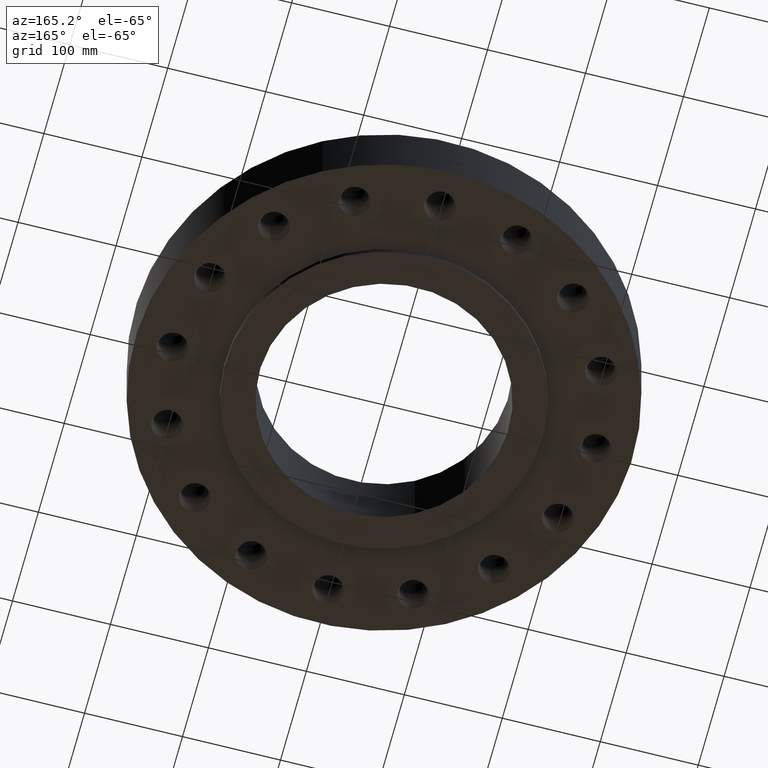
[diagram: clean part render]
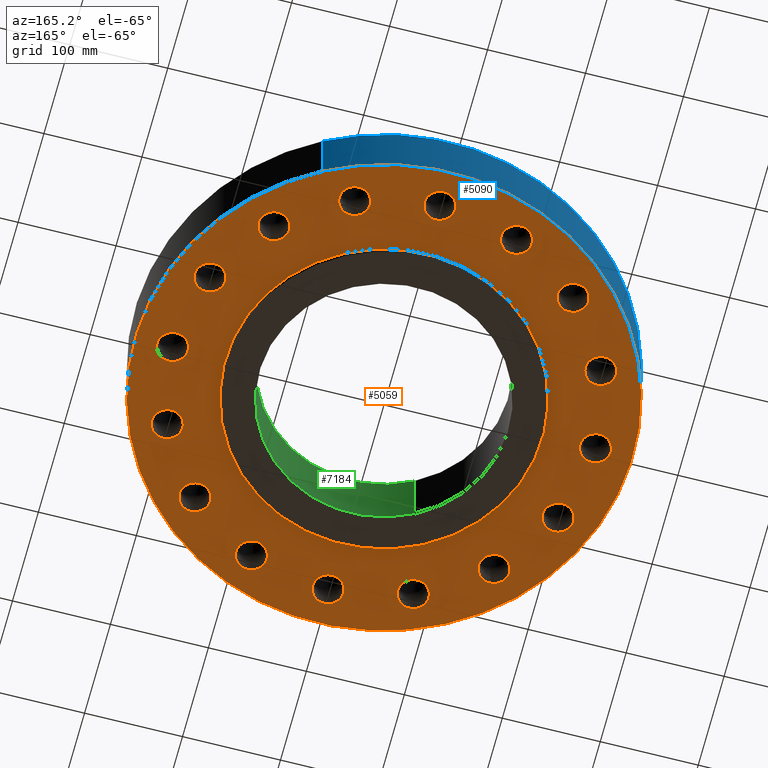
[diagram: same view with three faces highlighted in distinct colors, each labeled with its STEP entity id]
A machine part, auxiliary view with three faces highlighted in distinct colors.
Their STEP definitions:

[orange] entity #5059 — the highlighted planar face has unit normal (0, 0, -1).
#4242=AXIS2_PLACEMENT_3D('Circle Axis2P3D',#4240,#4241,$) ;
#4262=AXIS2_PLACEMENT_3D('Circle Axis2P3D',#4260,#4261,$) ;
#4282=AXIS2_PLACEMENT_3D('Circle Axis2P3D',#4280,#4281,$) ;
#4294=AXIS2_PLACEMENT_3D('Plane Axis2P3D',#4291,#4292,#4293) ;
#4298=AXIS2_PLACEMENT_3D('Circle Axis2P3D',#4296,#4297,$) ;
#4307=AXIS2_PLACEMENT_3D('Circle Axis2P3D',#4305,#4306,$) ;
#4323=AXIS2_PLACEMENT_3D('Circle Axis2P3D',#4321,#4322,$) ;
#4332=AXIS2_PLACEMENT_3D('Circle Axis2P3D',#4330,#4331,$) ;
#4341=AXIS2_PLACEMENT_3D('Circle Axis2P3D',#4339,#4340,$) ;
#4350=AXIS2_PLACEMENT_3D('Circle Axis2P3D',#4348,#4349,$) ;
#4357=AXIS2_PLACEMENT_3D('Circle Axis2P3D',#4355,#4356,$) ;
#4389=AXIS2_PLACEMENT_3D('Circle Axis2P3D',#4387,#4388,$) ;
#4398=AXIS2_PLACEMENT_3D('Circle Axis2P3D',#4396,#4397,$) ;
#4405=AXIS2_PLACEMENT_3D('Circle Axis2P3D',#4403,#4404,$) ;
#4437=AXIS2_PLACEMENT_3D('Circle Axis2P3D',#4435,#4436,$) ;
#4446=AXIS2_PLACEMENT_3D('Circle Axis2P3D',#4444,#4445,$) ;
#4453=AXIS2_PLACEMENT_3D('Circle Axis2P3D',#4451,#4452,$) ;
#4485=AXIS2_PLACEMENT_3D('Circle Axis2P3D',#4483,#4484,$) ;
#4494=AXIS2_PLACEMENT_3D('Circle Axis2P3D',#4492,#4493,$) ;
#4501=AXIS2_PLACEMENT_3D('Circle Axis2P3D',#4499,#4500,$) ;
#4533=AXIS2_PLACEMENT_3D('Circle Axis2P3D',#4531,#4532,$) ;
#4542=AXIS2_PLACEMENT_3D('Circle Axis2P3D',#4540,#4541,$) ;
#4549=AXIS2_PLACEMENT_3D('Circle Axis2P3D',#4547,#4548,$) ;
#4581=AXIS2_PLACEMENT_3D('Circle Axis2P3D',#4579,#4580,$) ;
#4590=AXIS2_PLACEMENT_3D('Circle Axis2P3D',#4588,#4589,$) ;
#4597=AXIS2_PLACEMENT_3D('Circle Axis2P3D',#4595,#4596,$) ;
#4629=AXIS2_PLACEMENT_3D('Circle Axis2P3D',#4627,#4628,$) ;
#4638=AXIS2_PLACEMENT_3D('Circle Axis2P3D',#4636,#4637,$) ;
#4645=AXIS2_PLACEMENT_3D('Circle Axis2P3D',#4643,#4644,$) ;
#4677=AXIS2_PLACEMENT_3D('Circle Axis2P3D',#4675,#4676,$) ;
#4686=AXIS2_PLACEMENT_3D('Circle Axis2P3D',#4684,#4685,$) ;
#4693=AXIS2_PLACEMENT_3D('Circle Axis2P3D',#4691,#4692,$) ;
#4725=AXIS2_PLACEMENT_3D('Circle Axis2P3D',#4723,#4724,$) ;
#4734=AXIS2_PLACEMENT_3D('Circle Axis2P3D',#4732,#4733,$) ;
#4741=AXIS2_PLACEMENT_3D('Circle Axis2P3D',#4739,#4740,$) ;
#4773=AXIS2_PLACEMENT_3D('Circle Axis2P3D',#4771,#4772,$) ;
#4782=AXIS2_PLACEMENT_3D('Circle Axis2P3D',#4780,#4781,$) ;
#4789=AXIS2_PLACEMENT_3D('Circle Axis2P3D',#4787,#4788,$) ;
#4821=AXIS2_PLACEMENT_3D('Circle Axis2P3D',#4819,#4820,$) ;
#4830=AXIS2_PLACEMENT_3D('Circle Axis2P3D',#4828,#4829,$) ;
#4837=AXIS2_PLACEMENT_3D('Circle Axis2P3D',#4835,#4836,$) ;
#4869=AXIS2_PLACEMENT_3D('Circle Axis2P3D',#4867,#4868,$) ;
#4878=AXIS2_PLACEMENT_3D('Circle Axis2P3D',#4876,#4877,$) ;
#4885=AXIS2_PLACEMENT_3D('Circle Axis2P3D',#4883,#4884,$) ;
#4917=AXIS2_PLACEMENT_3D('Circle Axis2P3D',#4915,#4916,$) ;
#4926=AXIS2_PLACEMENT_3D('Circle Axis2P3D',#4924,#4925,$) ;
#4933=AXIS2_PLACEMENT_3D('Circle Axis2P3D',#4931,#4932,$) ;
#4965=AXIS2_PLACEMENT_3D('Circle Axis2P3D',#4963,#4964,$) ;
#4974=AXIS2_PLACEMENT_3D('Circle Axis2P3D',#4972,#4973,$) ;
#4981=AXIS2_PLACEMENT_3D('Circle Axis2P3D',#4979,#4980,$) ;
#5013=AXIS2_PLACEMENT_3D('Circle Axis2P3D',#5011,#5012,$) ;
#5022=AXIS2_PLACEMENT_3D('Circle Axis2P3D',#5020,#5021,$) ;
#5029=AXIS2_PLACEMENT_3D('Circle Axis2P3D',#5027,#5028,$) ;
#3959=CARTESIAN_POINT('Vertex',(6.01040764011,5.38540764011,2.84112191341E-017)) ;
#4178=CARTESIAN_POINT('Vertex',(6.08716319248,5.3926578241,0.)) ;
#4182=CARTESIAN_POINT('Control Point',(6.01040764011,5.38540764011,3.49676543189E-017)) ;
#4183=CARTESIAN_POINT('Control Point',(6.03613583724,5.38624061012,3.54605596225E-017)) ;
#4184=CARTESIAN_POINT('Control Point',(6.06178776131,5.38866509269,-5.55355421226E-012)) ;
#4185=CARTESIAN_POINT('Control Point',(6.08716315644,5.39265773436,-5.51380682145E-012)) ;
#4215=CARTESIAN_POINT('Control Point',(6.01040764011,5.38540764011,6.55643518479E-018)) ;
#4216=CARTESIAN_POINT('Control Point',(5.98469574429,5.38624008238,6.80273167895E-018)) ;
#4217=CARTESIAN_POINT('Control Point',(5.9590597717,5.38866207663,-3.87167894847E-011)) ;
#4218=CARTESIAN_POINT('Control Point',(5.93369613002,5.39265218477,-1.17694052229E-010)) ;
#4219=CARTESIAN_POINT('Vertex',(5.93369613738,5.39265235251,0.)) ;
#4240=CARTESIAN_POINT('Axis2P3D Location',(6.01040764011,6.01040764011,-8.74191357973E-018)) ;
#4244=CARTESIAN_POINT('Vertex',(5.46411249533,5.71196524233,-8.74191357973E-018)) ;
#4260=CARTESIAN_POINT('Axis2P3D Location',(6.01040764011,6.01040764011,-8.74191357973E-018)) ;
#4264=CARTESIAN_POINT('Vertex',(6.55670278489,6.30885003789,-8.74191357973E-018)) ;
#4280=CARTESIAN_POINT('Axis2P3D Location',(6.01040764011,6.01040764011,-8.74191357973E-018)) ;
#4291=CARTESIAN_POINT('Axis2P3D Location',(0.,10.,0.)) ;
#4296=CARTESIAN_POINT('Axis2P3D Location',(0.,0.,0.)) ;
#4300=CARTESIAN_POINT('Vertex',(-4.79425538606,-8.77582561894,-4.25206676518E-014)) ;
#4302=CARTESIAN_POINT('Vertex',(4.79425538606,8.77582561894,-4.25206676518E-014)) ;
#4305=CARTESIAN_POINT('Axis2P3D Location',(0.,0.,0.)) ;
#4321=CARTESIAN_POINT('Axis2P3D Location',(0.,0.,0.)) ;
#4325=CARTESIAN_POINT('Vertex',(3.05633780861,5.59458883207,-3.04917945661E-014)) ;
#4327=CARTESIAN_POINT('Vertex',(-3.05633780861,-5.59458883207,-3.04917945661E-014)) ;
#4330=CARTESIAN_POINT('Axis2P3D Location',(0.,0.,0.)) ;
#4339=CARTESIAN_POINT('Axis2P3D Location',(7.85297602638,3.25280917512,0.)) ;
#4343=CARTESIAN_POINT('Vertex',(8.4718958905,3.31947589697,0.)) ;
#4345=CARTESIAN_POINT('Vertex',(7.68748629027,2.65270968566,0.)) ;
#4348=CARTESIAN_POINT('Axis2P3D Location',(7.85297602638,3.25280917512,0.)) ;
#4352=CARTESIAN_POINT('Vertex',(7.23405616226,3.18614245326,8.74191357973E-018)) ;
#4355=CARTESIAN_POINT('Axis2P3D Location',(7.85297602638,3.25280917512,0.)) ;
#4359=CARTESIAN_POINT('Vertex',(7.5456991253,2.71143392996,0.)) ;
#4363=CARTESIAN_POINT('Control Point',(7.61379888115,2.67538446729,0.)) ;
#4364=CARTESIAN_POINT('Control Point',(7.5997372017,2.68174962304,0.)) ;
#4365=CARTESIAN_POINT('Control Point',(7.58587876717,2.68854608521,0.)) ;
#4366=CARTESIAN_POINT('Control Point',(7.57224147785,2.69576548619,0.)) ;
#4367=CARTESIAN_POINT('Control Point',(7.55884269662,2.70339829503,0.)) ;
#4368=CARTESIAN_POINT('Control Point',(7.5456991253,2.71143392996,0.)) ;
#4369=CARTESIAN_POINT('Vertex',(7.61379888115,2.67538446729,2.84112191341E-017)) ;
#4373=CARTESIAN_POINT('Control Point',(7.61379888115,2.67538446729,0.)) ;
#4374=CARTESIAN_POINT('Control Point',(7.62825199228,2.66993875279,0.)) ;
#4375=CARTESIAN_POINT('Control Point',(7.64286657171,2.66494230281,0.)) ;
#4376=CARTESIAN_POINT('Control Point',(7.65762346279,2.66040184048,0.)) ;
#4377=CARTESIAN_POINT('Control Point',(7.672503232,2.65632287566,0.)) ;
#4378=CARTESIAN_POINT('Control Point',(7.68748629027,2.65270968566,0.)) ;
#4387=CARTESIAN_POINT('Axis2P3D Location',(8.50000000003,1.1189649382E-015,0.)) ;
#4391=CARTESIAN_POINT('Vertex',(9.0973196447,-0.175258358137,0.)) ;
#4393=CARTESIAN_POINT('Vertex',(8.11745928761,-0.49108945554,0.)) ;
#4396=CARTESIAN_POINT('Axis2P3D Location',(8.50000000003,3.35689481461E-015,0.)) ;
#4400=CARTESIAN_POINT('Vertex',(7.90268035537,0.175258358137,-5.24514814784E-017)) ;
#4403=CARTESIAN_POINT('Axis2P3D Location',(8.50000000003,1.1189649382E-015,0.)) ;
#4407=CARTESIAN_POINT('Vertex',(8.00893782329,-0.382575729204,0.)) ;
#4411=CARTESIAN_POINT('Control Point',(8.05805826179,-0.441941738243,0.)) ;
#4412=CARTESIAN_POINT('Control Point',(8.0475028036,-0.430679929367,0.)) ;
#4413=CARTESIAN_POINT('Control Point',(8.03730017305,-0.419097423777,0.)) ;
#4414=CARTESIAN_POINT('Control Point',(8.02746370572,-0.407208802289,0.)) ;
#4415=CARTESIAN_POINT('Control Point',(8.01800579546,-0.395029514828,0.)) ;
#4416=CARTESIAN_POINT('Control Point',(8.00893782329,-0.382575729204,0.)) ;
#4417=CARTESIAN_POINT('Vertex',(8.05805826179,-0.441941738243,2.84112191341E-017)) ;
#4421=CARTESIAN_POINT('Control Point',(8.05805826179,-0.441941738243,0.)) ;
#4422=CARTESIAN_POINT('Control Point',(8.06932721063,-0.452503888588,0.)) ;
#4423=CARTESIAN_POINT('Control Point',(8.08091726281,-0.462712763877,0.)) ;
#4424=CARTESIAN_POINT('Control Point',(8.09281329274,-0.472554821825,0.)) ;
#4425=CARTESIAN_POINT('Control Point',(8.10499945469,-0.48201753509,0.)) ;
#4426=CARTESIAN_POINT('Control Point',(8.11745928761,-0.49108945554,0.)) ;
#4435=CARTESIAN_POINT('Axis2P3D Location',(7.85297602638,-3.25280917512,0.)) ;
#4439=CARTESIAN_POINT('Vertex',(8.33775895041,-3.64331111694,0.)) ;
#4441=CARTESIAN_POINT('Vertex',(7.31162269337,-3.56012467887,0.)) ;
#4444=CARTESIAN_POINT('Axis2P3D Location',(7.85297602638,-3.25280917512,0.)) ;
#4448=CARTESIAN_POINT('Vertex',(7.36819310234,-2.86230723329,0.)) ;
#4451=CARTESIAN_POINT('Axis2P3D Location',(7.85297602638,-3.25280917512,0.)) ;
#4455=CARTESIAN_POINT('Vertex',(7.2528883389,-3.41834170164,0.)) ;
#4459=CARTESIAN_POINT('Control Point',(7.27555131856,-3.49198632035,0.)) ;
#4460=CARTESIAN_POINT('Control Point',(7.27010905445,-3.47754236665,0.)) ;
#4461=CARTESIAN_POINT('Control Point',(7.2651154859,-3.46293714912,0.)) ;
#4462=CARTESIAN_POINT('Control Point',(7.26057735353,-3.44818924197,0.)) ;
#4463=CARTESIAN_POINT('Control Point',(7.25650019536,-3.433317662,0.)) ;
#4464=CARTESIAN_POINT('Control Point',(7.2528883389,-3.41834170164,0.)) ;
#4465=CARTESIAN_POINT('Vertex',(7.27555131856,-3.49198632035,2.84112191341E-017)) ;
#4469=CARTESIAN_POINT('Control Point',(7.27555131856,-3.49198632035,0.)) ;
#4470=CARTESIAN_POINT('Control Point',(7.28192050979,-3.50605691489,0.)) ;
#4471=CARTESIAN_POINT('Control Point',(7.28872155435,-3.51992400677,0.)) ;
#4472=CARTESIAN_POINT('Control Point',(7.2959456604,-3.53356929623,0.)) ;
#4473=CARTESIAN_POINT('Control Point',(7.30358298241,-3.54697514562,0.)) ;
#4474=CARTESIAN_POINT('Control Point',(7.31162269337,-3.56012467887,0.)) ;
#4483=CARTESIAN_POINT('Axis2P3D Location',(6.01040764011,-6.01040764011,0.)) ;
#4487=CARTESIAN_POINT('Vertex',(6.30885003789,-6.55670278489,0.)) ;
#4489=CARTESIAN_POINT('Vertex',(5.3926578241,-6.08716319247,0.)) ;
#4492=CARTESIAN_POINT('Axis2P3D Location',(6.01040764011,-6.01040764011,0.)) ;
#4496=CARTESIAN_POINT('Vertex',(5.71196524233,-5.46411249533,-8.74191357973E-018)) ;
#4499=CARTESIAN_POINT('Axis2P3D Location',(6.01040764011,-6.01040764011,0.)) ;
#4503=CARTESIAN_POINT('Vertex',(5.39265235251,-5.93369613739,0.)) ;
#4507=CARTESIAN_POINT('Control Point',(5.38540764011,-6.01040764011,0.)) ;
#4508=CARTESIAN_POINT('Control Point',(5.38590710547,-5.99498050262,0.)) ;
#4509=CARTESIAN_POINT('Control Point',(5.38688282447,-5.97957608513,0.)) ;
#4510=CARTESIAN_POINT('Control Point',(5.38833391658,-5.9642141275,0.)) ;
#4511=CARTESIAN_POINT('Control Point',(5.39025822086,-5.94891431827,0.)) ;
#4512=CARTESIAN_POINT('Control Point',(5.39265235251,-5.93369613739,0.)) ;
#4513=CARTESIAN_POINT('Vertex',(5.38540764011,-6.01040764011,2.84112191341E-017)) ;
#4517=CARTESIAN_POINT('Control Point',(5.38540764011,-6.01040764011,0.)) ;
#4518=CARTESIAN_POINT('Control Point',(5.38590742212,-6.02584455839,0.)) ;
#4519=CARTESIAN_POINT('Control Point',(5.38688406166,-6.04125872783,0.)) ;
#4520=CARTESIAN_POINT('Control Point',(5.38833643918,-6.05662987718,0.)) ;
#4521=CARTESIAN_POINT('Control Point',(5.39026220821,-6.07193794365,0.)) ;
#4522=CARTESIAN_POINT('Control Point',(5.3926578241,-6.08716319247,0.)) ;
#4531=CARTESIAN_POINT('Axis2P3D Location',(3.25280917512,-7.85297602638,0.)) ;
#4535=CARTESIAN_POINT('Vertex',(3.31947589697,-8.4718958905,0.)) ;
#4537=CARTESIAN_POINT('Vertex',(2.65270968566,-7.68748629027,0.)) ;
#4540=CARTESIAN_POINT('Axis2P3D Location',(3.25280917512,-7.85297602638,0.)) ;
#4544=CARTESIAN_POINT('Vertex',(3.18614245326,-7.23405616226,8.74191357973E-018)) ;
#4547=CARTESIAN_POINT('Axis2P3D Location',(3.25280917512,-7.85297602638,0.)) ;
#4551=CARTESIAN_POINT('Vertex',(2.71143392997,-7.54569912529,0.)) ;
#4555=CARTESIAN_POINT('Control Point',(2.67538446729,-7.61379888115,0.)) ;
#4556=CARTESIAN_POINT('Control Point',(2.68174962304,-7.5997372017,0.)) ;
#4557=CARTESIAN_POINT('Control Point',(2.68854608522,-7.58587876716,0.)) ;
#4558=CARTESIAN_POINT('Control Point',(2.6957654862,-7.57224147784,0.)) ;
#4559=CARTESIAN_POINT('Control Point',(2.70339829504,-7.5588426966,0.)) ;
#4560=CARTESIAN_POINT('Control Point',(2.71143392997,-7.54569912529,0.)) ;
#4561=CARTESIAN_POINT('Vertex',(2.67538446729,-7.61379888115,2.84112191341E-017)) ;
#4565=CARTESIAN_POINT('Control Point',(2.67538446729,-7.61379888115,0.)) ;
#4566=CARTESIAN_POINT('Control Point',(2.66993875279,-7.62825199228,0.)) ;
#4567=CARTESIAN_POINT('Control Point',(2.66494230281,-7.64286657171,0.)) ;
#4568=CARTESIAN_POINT('Control Point',(2.66040184048,-7.65762346279,0.)) ;
#4569=CARTESIAN_POINT('Control Point',(2.65632287566,-7.672503232,0.)) ;
#4570=CARTESIAN_POINT('Control Point',(2.65270968566,-7.68748629027,0.)) ;
#4579=CARTESIAN_POINT('Axis2P3D Location',(2.93728296279E-015,-8.50000000003,0.)) ;
#4583=CARTESIAN_POINT('Vertex',(-0.175258358137,-9.0973196447,0.)) ;
#4585=CARTESIAN_POINT('Vertex',(-0.491089455542,-8.11745928761,0.)) ;
#4588=CARTESIAN_POINT('Axis2P3D Location',(7.69288395016E-016,-8.50000000003,0.)) ;
#4592=CARTESIAN_POINT('Vertex',(0.175258358137,-7.90268035537,-5.24514814784E-017)) ;
#4595=CARTESIAN_POINT('Axis2P3D Location',(2.93728296279E-015,-8.50000000003,0.)) ;
#4599=CARTESIAN_POINT('Vertex',(-0.382575729198,-8.00893782329,0.)) ;
#4603=CARTESIAN_POINT('Control Point',(-0.441941738243,-8.05805826179,0.)) ;
#4604=CARTESIAN_POINT('Control Point',(-0.430679929366,-8.0475028036,0.)) ;
#4605=CARTESIAN_POINT('Control Point',(-0.419097423775,-8.03730017305,0.)) ;
#4606=CARTESIAN_POINT('Control Point',(-0.407208802285,-8.02746370571,0.)) ;
#4607=CARTESIAN_POINT('Control Point',(-0.395029514823,-8.01800579545,0.)) ;
#4608=CARTESIAN_POINT('Control Point',(-0.382575729198,-8.00893782329,0.)) ;
#4609=CARTESIAN_POINT('Vertex',(-0.441941738243,-8.05805826179,2.84112191341E-017)) ;
#4613=CARTESIAN_POINT('Control Point',(-0.441941738243,-8.05805826179,0.)) ;
#4614=CARTESIAN_POINT('Control Point',(-0.452503888588,-8.06932721063,0.)) ;
#4615=CARTESIAN_POINT('Control Point',(-0.462712763878,-8.08091726281,0.)) ;
#4616=CARTESIAN_POINT('Control Point',(-0.472554821826,-8.09281329274,0.)) ;
#4617=CARTESIAN_POINT('Control Point',(-0.482017535091,-8.10499945469,0.)) ;
#4618=CARTESIAN_POINT('Control Point',(-0.491089455542,-8.11745928761,0.)) ;
#4627=CARTESIAN_POINT('Axis2P3D Location',(-3.25280917512,-7.85297602638,0.)) ;
#4631=CARTESIAN_POINT('Vertex',(-3.64331111694,-8.33775895041,0.)) ;
#4633=CARTESIAN_POINT('Vertex',(-3.56012467888,-7.31162269338,0.)) ;
#4636=CARTESIAN_POINT('Axis2P3D Location',(-3.25280917512,-7.85297602638,0.)) ;
#4640=CARTESIAN_POINT('Vertex',(-2.86230723329,-7.36819310234,0.)) ;
#4643=CARTESIAN_POINT('Axis2P3D Location',(-3.25280917512,-7.85297602638,0.)) ;
#4647=CARTESIAN_POINT('Vertex',(-3.41834170168,-7.25288833891,0.)) ;
#4651=CARTESIAN_POINT('Control Point',(-3.49198632035,-7.27555131856,0.)) ;
#4652=CARTESIAN_POINT('Control Point',(-3.47754236666,-7.27010905446,0.)) ;
#4653=CARTESIAN_POINT('Control Point',(-3.46293714914,-7.26511548591,0.)) ;
#4654=CARTESIAN_POINT('Control Point',(-3.448189242,-7.26057735354,0.)) ;
#4655=CARTESIAN_POINT('Control Point',(-3.43331766203,-7.25650019537,0.)) ;
#4656=CARTESIAN_POINT('Control Point',(-3.41834170168,-7.25288833891,0.)) ;
#4657=CARTESIAN_POINT('Vertex',(-3.49198632035,-7.27555131856,2.84112191341E-017)) ;
#4661=CARTESIAN_POINT('Control Point',(-3.49198632035,-7.27555131856,0.)) ;
#4662=CARTESIAN_POINT('Control Point',(-3.50605691489,-7.2819205098,0.)) ;
#4663=CARTESIAN_POINT('Control Point',(-3.51992400677,-7.28872155435,0.)) ;
#4664=CARTESIAN_POINT('Control Point',(-3.53356929623,-7.2959456604,0.)) ;
#4665=CARTESIAN_POINT('Control Point',(-3.54697514562,-7.30358298242,0.)) ;
#4666=CARTESIAN_POINT('Control Point',(-3.56012467888,-7.31162269338,0.)) ;
#4675=CARTESIAN_POINT('Axis2P3D Location',(-6.01040764011,-6.01040764011,0.)) ;
#4679=CARTESIAN_POINT('Vertex',(-6.55670278489,-6.30885003789,0.)) ;
#4681=CARTESIAN_POINT('Vertex',(-6.08716319246,-5.3926578241,0.)) ;
#4684=CARTESIAN_POINT('Axis2P3D Location',(-6.01040764011,-6.01040764011,0.)) ;
#4688=CARTESIAN_POINT('Vertex',(-5.46411249533,-5.71196524233,-8.74191357973E-018)) ;
#4691=CARTESIAN_POINT('Axis2P3D Location',(-6.01040764011,-6.01040764011,0.)) ;
#4695=CARTESIAN_POINT('Vertex',(-5.9336961374,-5.39265235251,0.)) ;
#4699=CARTESIAN_POINT('Control Point',(-6.01040764011,-5.38540764011,0.)) ;
#4700=CARTESIAN_POINT('Control Point',(-5.99498050262,-5.38590710547,0.)) ;
#4701=CARTESIAN_POINT('Control Point',(-5.97957608513,-5.38688282447,0.)) ;
#4702=CARTESIAN_POINT('Control Point',(-5.9642141275,-5.38833391658,0.)) ;
#4703=CARTESIAN_POINT('Control Point',(-5.94891431827,-5.39025822086,0.)) ;
#4704=CARTESIAN_POINT('Control Point',(-5.9336961374,-5.39265235251,0.)) ;
#4705=CARTESIAN_POINT('Vertex',(-6.01040764011,-5.38540764011,2.84112191341E-017)) ;
#4709=CARTESIAN_POINT('Control Point',(-6.01040764011,-5.38540764011,0.)) ;
#4710=CARTESIAN_POINT('Control Point',(-6.02584455838,-5.38590742212,0.)) ;
#4711=CARTESIAN_POINT('Control Point',(-6.04125872782,-5.38688406166,0.)) ;
#4712=CARTESIAN_POINT('Control Point',(-6.05662987717,-5.38833643918,0.)) ;
#4713=CARTESIAN_POINT('Control Point',(-6.07193794364,-5.39026220821,0.)) ;
#4714=CARTESIAN_POINT('Control Point',(-6.08716319246,-5.3926578241,0.)) ;
#4723=CARTESIAN_POINT('Axis2P3D Location',(-7.85297602638,-3.25280917512,0.)) ;
#4727=CARTESIAN_POINT('Vertex',(-8.4718958905,-3.31947589697,0.)) ;
#4729=CARTESIAN_POINT('Vertex',(-7.68748629028,-2.65270968566,0.)) ;
#4732=CARTESIAN_POINT('Axis2P3D Location',(-7.85297602638,-3.25280917512,0.)) ;
#4736=CARTESIAN_POINT('Vertex',(-7.23405616226,-3.18614245326,8.74191357973E-018)) ;
#4739=CARTESIAN_POINT('Axis2P3D Location',(-7.85297602638,-3.25280917512,0.)) ;
#4743=CARTESIAN_POINT('Vertex',(-7.54569912527,-2.71143392998,0.)) ;
#4747=CARTESIAN_POINT('Control Point',(-7.61379888115,-2.67538446729,0.)) ;
#4748=CARTESIAN_POINT('Control Point',(-7.59973720169,-2.68174962305,0.)) ;
#4749=CARTESIAN_POINT('Control Point',(-7.58587876715,-2.68854608522,0.)) ;
#4750=CARTESIAN_POINT('Control Point',(-7.57224147783,-2.6957654862,0.)) ;
#4751=CARTESIAN_POINT('Control Point',(-7.55884269659,-2.70339829505,0.)) ;
#4752=CARTESIAN_POINT('Control Point',(-7.54569912527,-2.71143392998,0.)) ;
#4753=CARTESIAN_POINT('Vertex',(-7.61379888115,-2.67538446729,2.84112191341E-017)) ;
#4757=CARTESIAN_POINT('Control Point',(-7.61379888115,-2.67538446729,0.)) ;
#4758=CARTESIAN_POINT('Control Point',(-7.62825199229,-2.66993875279,0.)) ;
#4759=CARTESIAN_POINT('Control Point',(-7.64286657172,-2.66494230281,0.)) ;
#4760=CARTESIAN_POINT('Control Point',(-7.6576234628,-2.66040184048,0.)) ;
#4761=CARTESIAN_POINT('Control Point',(-7.67250323201,-2.65632287565,0.)) ;
#4762=CARTESIAN_POINT('Control Point',(-7.68748629028,-2.65270968566,0.)) ;
#4771=CARTESIAN_POINT('Axis2P3D Location',(-8.50000000003,-3.35689481461E-015,0.)) ;
#4775=CARTESIAN_POINT('Vertex',(-9.0973196447,0.175258358137,0.)) ;
#4777=CARTESIAN_POINT('Vertex',(-8.11745928762,0.491089455543,0.)) ;
#4780=CARTESIAN_POINT('Axis2P3D Location',(-8.50000000003,-2.23792987641E-015,0.)) ;
#4784=CARTESIAN_POINT('Vertex',(-7.90268035537,-0.175258358137,3.49676543189E-017)) ;
#4787=CARTESIAN_POINT('Axis2P3D Location',(-8.50000000003,-3.35689481461E-015,0.)) ;
#4791=CARTESIAN_POINT('Vertex',(-8.00893782329,0.382575729201,0.)) ;
#4795=CARTESIAN_POINT('Control Point',(-8.05805826179,0.441941738243,0.)) ;
#4796=CARTESIAN_POINT('Control Point',(-8.0475028036,0.430679929366,0.)) ;
#4797=CARTESIAN_POINT('Control Point',(-8.03730017305,0.419097423776,0.)) ;
#4798=CARTESIAN_POINT('Control Point',(-8.02746370571,0.407208802287,0.)) ;
#4799=CARTESIAN_POINT('Control Point',(-8.01800579546,0.395029514826,0.)) ;
#4800=CARTESIAN_POINT('Control Point',(-8.00893782329,0.382575729201,0.)) ;
#4801=CARTESIAN_POINT('Vertex',(-8.05805826179,0.441941738243,2.84112191341E-017)) ;
#4805=CARTESIAN_POINT('Control Point',(-8.05805826179,0.441941738243,0.)) ;
#4806=CARTESIAN_POINT('Control Point',(-8.06932721063,0.452503888589,0.)) ;
#4807=CARTESIAN_POINT('Control Point',(-8.08091726282,0.462712763878,0.)) ;
#4808=CARTESIAN_POINT('Control Point',(-8.09281329274,0.472554821827,0.)) ;
#4809=CARTESIAN_POINT('Control Point',(-8.10499945469,0.482017535092,0.)) ;
#4810=CARTESIAN_POINT('Control Point',(-8.11745928762,0.491089455543,0.)) ;
#4819=CARTESIAN_POINT('Axis2P3D Location',(-7.85297602638,3.25280917512,0.)) ;
#4823=CARTESIAN_POINT('Vertex',(-8.33775895041,3.64331111694,0.)) ;
#4825=CARTESIAN_POINT('Vertex',(-7.31162269337,3.56012467887,0.)) ;
#4828=CARTESIAN_POINT('Axis2P3D Location',(-7.85297602638,3.25280917512,0.)) ;
#4832=CARTESIAN_POINT('Vertex',(-7.36819310234,2.86230723329,8.74191357973E-018)) ;
#4835=CARTESIAN_POINT('Axis2P3D Location',(-7.85297602638,3.25280917512,0.)) ;
#4839=CARTESIAN_POINT('Vertex',(-7.25288833891,3.41834170168,0.)) ;
#4843=CARTESIAN_POINT('Control Point',(-7.27555131856,3.49198632035,0.)) ;
#4844=CARTESIAN_POINT('Control Point',(-7.27010905446,3.47754236666,0.)) ;
#4845=CARTESIAN_POINT('Control Point',(-7.26511548591,3.46293714914,0.)) ;
#4846=CARTESIAN_POINT('Control Point',(-7.26057735354,3.448189242,0.)) ;
#4847=CARTESIAN_POINT('Control Point',(-7.25650019537,3.43331766203,0.)) ;
#4848=CARTESIAN_POINT('Control Point',(-7.25288833891,3.41834170168,0.)) ;
#4849=CARTESIAN_POINT('Vertex',(-7.27555131856,3.49198632035,2.84112191341E-017)) ;
#4853=CARTESIAN_POINT('Control Point',(-7.27555131856,3.49198632035,0.)) ;
#4854=CARTESIAN_POINT('Control Point',(-7.28192050979,3.50605691489,0.)) ;
#4855=CARTESIAN_POINT('Control Point',(-7.28872155435,3.51992400677,0.)) ;
#4856=CARTESIAN_POINT('Control Point',(-7.2959456604,3.53356929623,0.)) ;
#4857=CARTESIAN_POINT('Control Point',(-7.30358298242,3.54697514562,0.)) ;
#4858=CARTESIAN_POINT('Control Point',(-7.31162269337,3.56012467887,0.)) ;
#4867=CARTESIAN_POINT('Axis2P3D Location',(-6.01040764011,6.01040764011,0.)) ;
#4871=CARTESIAN_POINT('Vertex',(-6.30885003789,6.55670278489,0.)) ;
#4873=CARTESIAN_POINT('Vertex',(-5.39265782409,6.08716319246,0.)) ;
#4876=CARTESIAN_POINT('Axis2P3D Location',(-6.01040764011,6.01040764011,0.)) ;
#4880=CARTESIAN_POINT('Vertex',(-5.71196524233,5.46411249533,-8.74191357973E-018)) ;
#4883=CARTESIAN_POINT('Axis2P3D Location',(-6.01040764011,6.01040764011,0.)) ;
#4887=CARTESIAN_POINT('Vertex',(-5.39265235251,5.93369613739,0.)) ;
#4891=CARTESIAN_POINT('Control Point',(-5.38540764011,6.01040764011,0.)) ;
#4892=CARTESIAN_POINT('Control Point',(-5.38590710547,5.99498050262,0.)) ;
#4893=CARTESIAN_POINT('Control Point',(-5.38688282447,5.97957608513,0.)) ;
#4894=CARTESIAN_POINT('Control Point',(-5.38833391658,5.9642141275,0.)) ;
#4895=CARTESIAN_POINT('Control Point',(-5.39025822086,5.94891431827,0.)) ;
#4896=CARTESIAN_POINT('Control Point',(-5.39265235251,5.93369613739,0.)) ;
#4897=CARTESIAN_POINT('Vertex',(-5.38540764011,6.01040764011,2.84112191341E-017)) ;
#4901=CARTESIAN_POINT('Control Point',(-5.38540764011,6.01040764011,0.)) ;
#4902=CARTESIAN_POINT('Control Point',(-5.38590742212,6.02584455838,0.)) ;
#4903=CARTESIAN_POINT('Control Point',(-5.38688406166,6.04125872782,0.)) ;
#4904=CARTESIAN_POINT('Control Point',(-5.38833643918,6.05662987717,0.)) ;
#4905=CARTESIAN_POINT('Control Point',(-5.39026220821,6.07193794364,0.)) ;
#4906=CARTESIAN_POINT('Control Point',(-5.39265782409,6.08716319246,0.)) ;
#4915=CARTESIAN_POINT('Axis2P3D Location',(-3.25280917512,7.85297602638,0.)) ;
#4919=CARTESIAN_POINT('Vertex',(-3.31947589697,8.4718958905,0.)) ;
#4921=CARTESIAN_POINT('Vertex',(-2.65270968566,7.68748629027,0.)) ;
#4924=CARTESIAN_POINT('Axis2P3D Location',(-3.25280917512,7.85297602638,0.)) ;
#4928=CARTESIAN_POINT('Vertex',(-3.18614245326,7.23405616226,5.24514814784E-017)) ;
#4931=CARTESIAN_POINT('Axis2P3D Location',(-3.25280917512,7.85297602638,0.)) ;
#4935=CARTESIAN_POINT('Vertex',(-2.71143392997,7.54569912528,0.)) ;
#4939=CARTESIAN_POINT('Control Point',(-2.67538446729,7.61379888115,0.)) ;
#4940=CARTESIAN_POINT('Control Point',(-2.68174962304,7.59973720169,0.)) ;
#4941=CARTESIAN_POINT('Control Point',(-2.68854608522,7.58587876716,0.)) ;
#4942=CARTESIAN_POINT('Control Point',(-2.6957654862,7.57224147784,0.)) ;
#4943=CARTESIAN_POINT('Control Point',(-2.70339829504,7.5588426966,0.)) ;
#4944=CARTESIAN_POINT('Control Point',(-2.71143392997,7.54569912528,0.)) ;
#4945=CARTESIAN_POINT('Vertex',(-2.67538446729,7.61379888115,2.84112191341E-017)) ;
#4949=CARTESIAN_POINT('Control Point',(-2.67538446729,7.61379888115,0.)) ;
#4950=CARTESIAN_POINT('Control Point',(-2.66993875279,7.62825199228,0.)) ;
#4951=CARTESIAN_POINT('Control Point',(-2.66494230281,7.64286657172,0.)) ;
#4952=CARTESIAN_POINT('Control Point',(-2.66040184048,7.6576234628,0.)) ;
#4953=CARTESIAN_POINT('Control Point',(-2.65632287565,7.672503232,0.)) ;
#4954=CARTESIAN_POINT('Control Point',(-2.65270968566,7.68748629027,0.)) ;
#4963=CARTESIAN_POINT('Axis2P3D Location',(-4.05624790099E-015,8.50000000003,0.)) ;
#4967=CARTESIAN_POINT('Vertex',(0.175258358137,9.0973196447,0.)) ;
#4969=CARTESIAN_POINT('Vertex',(0.491089455547,8.11745928762,0.)) ;
#4972=CARTESIAN_POINT('Axis2P3D Location',(-4.26605382691E-015,8.50000000003,0.)) ;
#4976=CARTESIAN_POINT('Vertex',(-0.175258358137,7.90268035537,-8.74191357973E-018)) ;
#4979=CARTESIAN_POINT('Axis2P3D Location',(-4.05624790099E-015,8.50000000003,0.)) ;
#4983=CARTESIAN_POINT('Vertex',(0.382575729204,8.00893782329,0.)) ;
#4987=CARTESIAN_POINT('Control Point',(0.441941738243,8.05805826179,0.)) ;
#4988=CARTESIAN_POINT('Control Point',(0.430679929367,8.0475028036,0.)) ;
#4989=CARTESIAN_POINT('Control Point',(0.419097423777,8.03730017305,0.)) ;
#4990=CARTESIAN_POINT('Control Point',(0.407208802289,8.02746370572,0.)) ;
#4991=CARTESIAN_POINT('Control Point',(0.395029514828,8.01800579546,0.)) ;
#4992=CARTESIAN_POINT('Control Point',(0.382575729204,8.00893782329,0.)) ;
#4993=CARTESIAN_POINT('Vertex',(0.441941738243,8.05805826179,2.84112191341E-017)) ;
#4997=CARTESIAN_POINT('Control Point',(0.441941738243,8.05805826179,0.)) ;
#4998=CARTESIAN_POINT('Control Point',(0.45250388859,8.06932721063,0.)) ;
#4999=CARTESIAN_POINT('Control Point',(0.462712763881,8.08091726282,0.)) ;
#5000=CARTESIAN_POINT('Control Point',(0.47255482183,8.09281329274,0.)) ;
#5001=CARTESIAN_POINT('Control Point',(0.482017535096,8.1049994547,0.)) ;
#5002=CARTESIAN_POINT('Control Point',(0.491089455547,8.11745928762,0.)) ;
#5011=CARTESIAN_POINT('Axis2P3D Location',(3.25280917512,7.85297602638,0.)) ;
#5015=CARTESIAN_POINT('Vertex',(3.64331111694,8.33775895041,0.)) ;
#5017=CARTESIAN_POINT('Vertex',(3.56012467887,7.31162269337,0.)) ;
#5020=CARTESIAN_POINT('Axis2P3D Location',(3.25280917512,7.85297602638,0.)) ;
#5024=CARTESIAN_POINT('Vertex',(2.86230723329,7.36819310234,4.37095678986E-016)) ;
#5027=CARTESIAN_POINT('Axis2P3D Location',(3.25280917512,7.85297602638,0.)) ;
#5031=CARTESIAN_POINT('Vertex',(3.41834170168,7.25288833891,0.)) ;
#5035=CARTESIAN_POINT('Control Point',(3.49198632035,7.27555131856,0.)) ;
#5036=CARTESIAN_POINT('Control Point',(3.47754236666,7.27010905446,0.)) ;
#5037=CARTESIAN_POINT('Control Point',(3.46293714914,7.26511548591,0.)) ;
#5038=CARTESIAN_POINT('Control Point',(3.448189242,7.26057735354,0.)) ;
#5039=CARTESIAN_POINT('Control Point',(3.43331766203,7.25650019537,0.)) ;
#5040=CARTESIAN_POINT('Control Point',(3.41834170168,7.25288833891,0.)) ;
#5041=CARTESIAN_POINT('Vertex',(3.49198632035,7.27555131856,2.84112191341E-017)) ;
#5045=CARTESIAN_POINT('Control Point',(3.49198632035,7.27555131856,0.)) ;
#5046=CARTESIAN_POINT('Control Point',(3.50605691489,7.28192050979,0.)) ;
#5047=CARTESIAN_POINT('Control Point',(3.51992400677,7.28872155435,0.)) ;
#5048=CARTESIAN_POINT('Control Point',(3.53356929623,7.2959456604,0.)) ;
#5049=CARTESIAN_POINT('Control Point',(3.54697514562,7.30358298242,0.)) ;
#5050=CARTESIAN_POINT('Control Point',(3.56012467887,7.31162269337,0.)) ;
#4241=DIRECTION('Axis2P3D Direction',(0.,0.,-0.0393700787402)) ;
#4261=DIRECTION('Axis2P3D Direction',(0.,0.,-0.0393700787402)) ;
#4281=DIRECTION('Axis2P3D Direction',(0.,0.,-0.0393700787402)) ;
#4292=DIRECTION('Axis2P3D Direction',(0.,0.,-0.0393700787402)) ;
#4293=DIRECTION('Axis2P3D XDirection',(0.0393700787402,0.,0.)) ;
#4297=DIRECTION('Axis2P3D Direction',(0.,0.,-0.0393700787402)) ;
#4306=DIRECTION('Axis2P3D Direction',(0.,0.,-0.0393700787402)) ;
#4322=DIRECTION('Axis2P3D Direction',(0.,0.,-0.0393700787402)) ;
#4331=DIRECTION('Axis2P3D Direction',(0.,0.,-0.0393700787402)) ;
#4340=DIRECTION('Axis2P3D Direction',(0.,0.,-0.0393700787402)) ;
#4349=DIRECTION('Axis2P3D Direction',(0.,0.,-0.0393700787402)) ;
#4356=DIRECTION('Axis2P3D Direction',(0.,0.,-0.0393700787402)) ;
#4388=DIRECTION('Axis2P3D Direction',(0.,0.,-0.0393700787402)) ;
#4397=DIRECTION('Axis2P3D Direction',(0.,0.,-0.0393700787402)) ;
#4404=DIRECTION('Axis2P3D Direction',(0.,0.,-0.0393700787402)) ;
#4436=DIRECTION('Axis2P3D Direction',(0.,0.,-0.0393700787402)) ;
#4445=DIRECTION('Axis2P3D Direction',(0.,0.,-0.0393700787402)) ;
#4452=DIRECTION('Axis2P3D Direction',(0.,0.,-0.0393700787402)) ;
#4484=DIRECTION('Axis2P3D Direction',(0.,0.,-0.0393700787402)) ;
#4493=DIRECTION('Axis2P3D Direction',(0.,0.,-0.0393700787402)) ;
#4500=DIRECTION('Axis2P3D Direction',(0.,0.,-0.0393700787402)) ;
#4532=DIRECTION('Axis2P3D Direction',(0.,0.,-0.0393700787402)) ;
#4541=DIRECTION('Axis2P3D Direction',(0.,0.,-0.0393700787402)) ;
#4548=DIRECTION('Axis2P3D Direction',(0.,0.,-0.0393700787402)) ;
#4580=DIRECTION('Axis2P3D Direction',(0.,0.,-0.0393700787402)) ;
#4589=DIRECTION('Axis2P3D Direction',(0.,0.,-0.0393700787402)) ;
#4596=DIRECTION('Axis2P3D Direction',(0.,0.,-0.0393700787402)) ;
#4628=DIRECTION('Axis2P3D Direction',(0.,0.,-0.0393700787402)) ;
#4637=DIRECTION('Axis2P3D Direction',(0.,0.,-0.0393700787402)) ;
#4644=DIRECTION('Axis2P3D Direction',(0.,0.,-0.0393700787402)) ;
#4676=DIRECTION('Axis2P3D Direction',(0.,0.,-0.0393700787402)) ;
#4685=DIRECTION('Axis2P3D Direction',(0.,0.,-0.0393700787402)) ;
#4692=DIRECTION('Axis2P3D Direction',(0.,0.,-0.0393700787402)) ;
#4724=DIRECTION('Axis2P3D Direction',(0.,0.,-0.0393700787402)) ;
#4733=DIRECTION('Axis2P3D Direction',(0.,0.,-0.0393700787402)) ;
#4740=DIRECTION('Axis2P3D Direction',(0.,0.,-0.0393700787402)) ;
#4772=DIRECTION('Axis2P3D Direction',(0.,0.,-0.0393700787402)) ;
#4781=DIRECTION('Axis2P3D Direction',(0.,0.,-0.0393700787402)) ;
#4788=DIRECTION('Axis2P3D Direction',(0.,0.,-0.0393700787402)) ;
#4820=DIRECTION('Axis2P3D Direction',(0.,0.,-0.0393700787402)) ;
#4829=DIRECTION('Axis2P3D Direction',(0.,0.,-0.0393700787402)) ;
#4836=DIRECTION('Axis2P3D Direction',(0.,0.,-0.0393700787402)) ;
#4868=DIRECTION('Axis2P3D Direction',(0.,0.,-0.0393700787402)) ;
#4877=DIRECTION('Axis2P3D Direction',(0.,0.,-0.0393700787402)) ;
#4884=DIRECTION('Axis2P3D Direction',(0.,0.,-0.0393700787402)) ;
#4916=DIRECTION('Axis2P3D Direction',(0.,0.,-0.0393700787402)) ;
#4925=DIRECTION('Axis2P3D Direction',(0.,0.,-0.0393700787402)) ;
#4932=DIRECTION('Axis2P3D Direction',(0.,0.,-0.0393700787402)) ;
#4964=DIRECTION('Axis2P3D Direction',(0.,0.,-0.0393700787402)) ;
#4973=DIRECTION('Axis2P3D Direction',(0.,0.,-0.0393700787402)) ;
#4980=DIRECTION('Axis2P3D Direction',(0.,0.,-0.0393700787402)) ;
#5012=DIRECTION('Axis2P3D Direction',(0.,0.,-0.0393700787402)) ;
#5021=DIRECTION('Axis2P3D Direction',(0.,0.,-0.0393700787402)) ;
#5028=DIRECTION('Axis2P3D Direction',(0.,0.,-0.0393700787402)) ;
#4311=ORIENTED_EDGE('',*,*,#4304,.T.) ;
#4312=ORIENTED_EDGE('',*,*,#4309,.T.) ;
#4315=ORIENTED_EDGE('',*,*,#4284,.F.) ;
#4316=ORIENTED_EDGE('',*,*,#4266,.F.) ;
#4317=ORIENTED_EDGE('',*,*,#4246,.F.) ;
#4318=ORIENTED_EDGE('',*,*,#4221,.F.) ;
#4319=ORIENTED_EDGE('',*,*,#4186,.T.) ;
#4336=ORIENTED_EDGE('',*,*,#4329,.F.) ;
#4337=ORIENTED_EDGE('',*,*,#4334,.F.) ;
#4381=ORIENTED_EDGE('',*,*,#4347,.F.) ;
#4382=ORIENTED_EDGE('',*,*,#4354,.F.) ;
#4383=ORIENTED_EDGE('',*,*,#4361,.F.) ;
#4384=ORIENTED_EDGE('',*,*,#4371,.F.) ;
#4385=ORIENTED_EDGE('',*,*,#4379,.T.) ;
#4429=ORIENTED_EDGE('',*,*,#4395,.F.) ;
#4430=ORIENTED_EDGE('',*,*,#4402,.F.) ;
#4431=ORIENTED_EDGE('',*,*,#4409,.F.) ;
#4432=ORIENTED_EDGE('',*,*,#4419,.F.) ;
#4433=ORIENTED_EDGE('',*,*,#4427,.T.) ;
#4477=ORIENTED_EDGE('',*,*,#4443,.F.) ;
#4478=ORIENTED_EDGE('',*,*,#4450,.F.) ;
#4479=ORIENTED_EDGE('',*,*,#4457,.F.) ;
#4480=ORIENTED_EDGE('',*,*,#4467,.F.) ;
#4481=ORIENTED_EDGE('',*,*,#4475,.T.) ;
#4525=ORIENTED_EDGE('',*,*,#4491,.F.) ;
#4526=ORIENTED_EDGE('',*,*,#4498,.F.) ;
#4527=ORIENTED_EDGE('',*,*,#4505,.F.) ;
#4528=ORIENTED_EDGE('',*,*,#4515,.F.) ;
#4529=ORIENTED_EDGE('',*,*,#4523,.T.) ;
#4573=ORIENTED_EDGE('',*,*,#4539,.F.) ;
#4574=ORIENTED_EDGE('',*,*,#4546,.F.) ;
#4575=ORIENTED_EDGE('',*,*,#4553,.F.) ;
#4576=ORIENTED_EDGE('',*,*,#4563,.F.) ;
#4577=ORIENTED_EDGE('',*,*,#4571,.T.) ;
#4621=ORIENTED_EDGE('',*,*,#4587,.F.) ;
#4622=ORIENTED_EDGE('',*,*,#4594,.F.) ;
#4623=ORIENTED_EDGE('',*,*,#4601,.F.) ;
#4624=ORIENTED_EDGE('',*,*,#4611,.F.) ;
#4625=ORIENTED_EDGE('',*,*,#4619,.T.) ;
#4669=ORIENTED_EDGE('',*,*,#4635,.F.) ;
#4670=ORIENTED_EDGE('',*,*,#4642,.F.) ;
#4671=ORIENTED_EDGE('',*,*,#4649,.F.) ;
#4672=ORIENTED_EDGE('',*,*,#4659,.F.) ;
#4673=ORIENTED_EDGE('',*,*,#4667,.T.) ;
#4717=ORIENTED_EDGE('',*,*,#4683,.F.) ;
#4718=ORIENTED_EDGE('',*,*,#4690,.F.) ;
#4719=ORIENTED_EDGE('',*,*,#4697,.F.) ;
#4720=ORIENTED_EDGE('',*,*,#4707,.F.) ;
#4721=ORIENTED_EDGE('',*,*,#4715,.T.) ;
#4765=ORIENTED_EDGE('',*,*,#4731,.F.) ;
#4766=ORIENTED_EDGE('',*,*,#4738,.F.) ;
#4767=ORIENTED_EDGE('',*,*,#4745,.F.) ;
#4768=ORIENTED_EDGE('',*,*,#4755,.F.) ;
#4769=ORIENTED_EDGE('',*,*,#4763,.T.) ;
#4813=ORIENTED_EDGE('',*,*,#4779,.F.) ;
#4814=ORIENTED_EDGE('',*,*,#4786,.F.) ;
#4815=ORIENTED_EDGE('',*,*,#4793,.F.) ;
#4816=ORIENTED_EDGE('',*,*,#4803,.F.) ;
#4817=ORIENTED_EDGE('',*,*,#4811,.T.) ;
#4861=ORIENTED_EDGE('',*,*,#4827,.F.) ;
#4862=ORIENTED_EDGE('',*,*,#4834,.F.) ;
#4863=ORIENTED_EDGE('',*,*,#4841,.F.) ;
#4864=ORIENTED_EDGE('',*,*,#4851,.F.) ;
#4865=ORIENTED_EDGE('',*,*,#4859,.T.) ;
#4909=ORIENTED_EDGE('',*,*,#4875,.F.) ;
#4910=ORIENTED_EDGE('',*,*,#4882,.F.) ;
#4911=ORIENTED_EDGE('',*,*,#4889,.F.) ;
#4912=ORIENTED_EDGE('',*,*,#4899,.F.) ;
#4913=ORIENTED_EDGE('',*,*,#4907,.T.) ;
#4957=ORIENTED_EDGE('',*,*,#4923,.F.) ;
#4958=ORIENTED_EDGE('',*,*,#4930,.F.) ;
#4959=ORIENTED_EDGE('',*,*,#4937,.F.) ;
#4960=ORIENTED_EDGE('',*,*,#4947,.F.) ;
#4961=ORIENTED_EDGE('',*,*,#4955,.T.) ;
#5005=ORIENTED_EDGE('',*,*,#4971,.F.) ;
#5006=ORIENTED_EDGE('',*,*,#4978,.F.) ;
#5007=ORIENTED_EDGE('',*,*,#4985,.F.) ;
#5008=ORIENTED_EDGE('',*,*,#4995,.F.) ;
#5009=ORIENTED_EDGE('',*,*,#5003,.T.) ;
#5053=ORIENTED_EDGE('',*,*,#5019,.F.) ;
#5054=ORIENTED_EDGE('',*,*,#5026,.F.) ;
#5055=ORIENTED_EDGE('',*,*,#5033,.F.) ;
#5056=ORIENTED_EDGE('',*,*,#5043,.F.) ;
#5057=ORIENTED_EDGE('',*,*,#5051,.T.) ;
#4320=FACE_BOUND('',#4314,.T.) ;
#4338=FACE_BOUND('',#4335,.T.) ;
#4386=FACE_BOUND('',#4380,.T.) ;
#4434=FACE_BOUND('',#4428,.T.) ;
#4482=FACE_BOUND('',#4476,.T.) ;
#4530=FACE_BOUND('',#4524,.T.) ;
#4578=FACE_BOUND('',#4572,.T.) ;
#4626=FACE_BOUND('',#4620,.T.) ;
#4674=FACE_BOUND('',#4668,.T.) ;
#4722=FACE_BOUND('',#4716,.T.) ;
#4770=FACE_BOUND('',#4764,.T.) ;
#4818=FACE_BOUND('',#4812,.T.) ;
#4866=FACE_BOUND('',#4860,.T.) ;
#4914=FACE_BOUND('',#4908,.T.) ;
#4962=FACE_BOUND('',#4956,.T.) ;
#5010=FACE_BOUND('',#5004,.T.) ;
#5058=FACE_BOUND('',#5052,.T.) ;
#5059=ADVANCED_FACE('PartBody',(#4313,#4320,#4338,#4386,#4434,#4482,#4530,#4578,#4626,#4674,#4722,#4770,#4818,#4866,#4914,#4962,#5010,#5058),#4295,.T.) ;
#4181=B_SPLINE_CURVE_WITH_KNOTS('',3,(#4182,#4183,#4184,#4185),.UNSPECIFIED.,.F.,.U.,(4,4),(0.,2.7064388565),.UNSPECIFIED.) ;
#4214=B_SPLINE_CURVE_WITH_KNOTS('',3,(#4215,#4216,#4217,#4218),.UNSPECIFIED.,.F.,.U.,(4,4),(0.,2.70472406387),.UNSPECIFIED.) ;
#4362=B_SPLINE_CURVE_WITH_KNOTS('',5,(#4363,#4364,#4365,#4366,#4367,#4368),.UNSPECIFIED.,.F.,.U.,(6,6),(0.,2.70472406255),.UNSPECIFIED.) ;
#4372=B_SPLINE_CURVE_WITH_KNOTS('',5,(#4373,#4374,#4375,#4376,#4377,#4378),.UNSPECIFIED.,.F.,.U.,(6,6),(0.,2.7064388559),.UNSPECIFIED.) ;
#4410=B_SPLINE_CURVE_WITH_KNOTS('',5,(#4411,#4412,#4413,#4414,#4415,#4416),.UNSPECIFIED.,.F.,.U.,(6,6),(0.,2.70472406341),.UNSPECIFIED.) ;
#4420=B_SPLINE_CURVE_WITH_KNOTS('',5,(#4421,#4422,#4423,#4424,#4425,#4426),.UNSPECIFIED.,.F.,.U.,(6,6),(0.,2.7064388557),.UNSPECIFIED.) ;
#4458=B_SPLINE_CURVE_WITH_KNOTS('',5,(#4459,#4460,#4461,#4462,#4463,#4464),.UNSPECIFIED.,.F.,.U.,(6,6),(0.,2.70472406427),.UNSPECIFIED.) ;
#4468=B_SPLINE_CURVE_WITH_KNOTS('',5,(#4469,#4470,#4471,#4472,#4473,#4474),.UNSPECIFIED.,.F.,.U.,(6,6),(0.,2.7064388556),.UNSPECIFIED.) ;
#4506=B_SPLINE_CURVE_WITH_KNOTS('',5,(#4507,#4508,#4509,#4510,#4511,#4512),.UNSPECIFIED.,.F.,.U.,(6,6),(0.,2.70472406321),.UNSPECIFIED.) ;
#4516=B_SPLINE_CURVE_WITH_KNOTS('',5,(#4517,#4518,#4519,#4520,#4521,#4522),.UNSPECIFIED.,.F.,.U.,(6,6),(0.,2.70643885629),.UNSPECIFIED.) ;
#4554=B_SPLINE_CURVE_WITH_KNOTS('',5,(#4555,#4556,#4557,#4558,#4559,#4560),.UNSPECIFIED.,.F.,.U.,(6,6),(0.,2.70472406338),.UNSPECIFIED.) ;
#4564=B_SPLINE_CURVE_WITH_KNOTS('',5,(#4565,#4566,#4567,#4568,#4569,#4570),.UNSPECIFIED.,.F.,.U.,(6,6),(0.,2.70643885586),.UNSPECIFIED.) ;
#4602=B_SPLINE_CURVE_WITH_KNOTS('',5,(#4603,#4604,#4605,#4606,#4607,#4608),.UNSPECIFIED.,.F.,.U.,(6,6),(0.,2.70472406372),.UNSPECIFIED.) ;
#4612=B_SPLINE_CURVE_WITH_KNOTS('',5,(#4613,#4614,#4615,#4616,#4617,#4618),.UNSPECIFIED.,.F.,.U.,(6,6),(0.,2.70643885582),.UNSPECIFIED.) ;
#4650=B_SPLINE_CURVE_WITH_KNOTS('',5,(#4651,#4652,#4653,#4654,#4655,#4656),.UNSPECIFIED.,.F.,.U.,(6,6),(0.,2.70472406249),.UNSPECIFIED.) ;
#4660=B_SPLINE_CURVE_WITH_KNOTS('',5,(#4661,#4662,#4663,#4664,#4665,#4666),.UNSPECIFIED.,.F.,.U.,(6,6),(0.,2.70643885594),.UNSPECIFIED.) ;
#4698=B_SPLINE_CURVE_WITH_KNOTS('',5,(#4699,#4700,#4701,#4702,#4703,#4704),.UNSPECIFIED.,.F.,.U.,(6,6),(0.,2.70472406307),.UNSPECIFIED.) ;
#4708=B_SPLINE_CURVE_WITH_KNOTS('',5,(#4709,#4710,#4711,#4712,#4713,#4714),.UNSPECIFIED.,.F.,.U.,(6,6),(0.,2.7064388559),.UNSPECIFIED.) ;
#4746=B_SPLINE_CURVE_WITH_KNOTS('',5,(#4747,#4748,#4749,#4750,#4751,#4752),.UNSPECIFIED.,.F.,.U.,(6,6),(0.,2.70472406418),.UNSPECIFIED.) ;
#4756=B_SPLINE_CURVE_WITH_KNOTS('',5,(#4757,#4758,#4759,#4760,#4761,#4762),.UNSPECIFIED.,.F.,.U.,(6,6),(0.,2.70643885646),.UNSPECIFIED.) ;
#4794=B_SPLINE_CURVE_WITH_KNOTS('',5,(#4795,#4796,#4797,#4798,#4799,#4800),.UNSPECIFIED.,.F.,.U.,(6,6),(0.,2.70472406355),.UNSPECIFIED.) ;
#4804=B_SPLINE_CURVE_WITH_KNOTS('',5,(#4805,#4806,#4807,#4808,#4809,#4810),.UNSPECIFIED.,.F.,.U.,(6,6),(0.,2.70643885586),.UNSPECIFIED.) ;
#4842=B_SPLINE_CURVE_WITH_KNOTS('',5,(#4843,#4844,#4845,#4846,#4847,#4848),.UNSPECIFIED.,.F.,.U.,(6,6),(0.,2.70472406252),.UNSPECIFIED.) ;
#4852=B_SPLINE_CURVE_WITH_KNOTS('',5,(#4853,#4854,#4855,#4856,#4857,#4858),.UNSPECIFIED.,.F.,.U.,(6,6),(0.,2.70643885574),.UNSPECIFIED.) ;
#4890=B_SPLINE_CURVE_WITH_KNOTS('',5,(#4891,#4892,#4893,#4894,#4895,#4896),.UNSPECIFIED.,.F.,.U.,(6,6),(0.,2.70472406316),.UNSPECIFIED.) ;
#4900=B_SPLINE_CURVE_WITH_KNOTS('',5,(#4901,#4902,#4903,#4904,#4905,#4906),.UNSPECIFIED.,.F.,.U.,(6,6),(0.,2.70643885585),.UNSPECIFIED.) ;
#4938=B_SPLINE_CURVE_WITH_KNOTS('',5,(#4939,#4940,#4941,#4942,#4943,#4944),.UNSPECIFIED.,.F.,.U.,(6,6),(0.,2.70472406352),.UNSPECIFIED.) ;
#4948=B_SPLINE_CURVE_WITH_KNOTS('',5,(#4949,#4950,#4951,#4952,#4953,#4954),.UNSPECIFIED.,.F.,.U.,(6,6),(0.,2.70643885613),.UNSPECIFIED.) ;
#4986=B_SPLINE_CURVE_WITH_KNOTS('',5,(#4987,#4988,#4989,#4990,#4991,#4992),.UNSPECIFIED.,.F.,.U.,(6,6),(0.,2.7047240634),.UNSPECIFIED.) ;
#4996=B_SPLINE_CURVE_WITH_KNOTS('',5,(#4997,#4998,#4999,#5000,#5001,#5002),.UNSPECIFIED.,.F.,.U.,(6,6),(0.,2.70643885616),.UNSPECIFIED.) ;
#5034=B_SPLINE_CURVE_WITH_KNOTS('',5,(#5035,#5036,#5037,#5038,#5039,#5040),.UNSPECIFIED.,.F.,.U.,(6,6),(0.,2.7047240625),.UNSPECIFIED.) ;
#5044=B_SPLINE_CURVE_WITH_KNOTS('',5,(#5045,#5046,#5047,#5048,#5049,#5050),.UNSPECIFIED.,.F.,.U.,(6,6),(0.,2.70643885569),.UNSPECIFIED.) ;
#4243=CIRCLE('generated circle',#4242,0.622500000002) ;
#4263=CIRCLE('generated circle',#4262,0.622500000002) ;
#4283=CIRCLE('generated circle',#4282,0.622500000002) ;
#4299=CIRCLE('generated circle',#4298,10.) ;
#4308=CIRCLE('generated circle',#4307,10.) ;
#4324=CIRCLE('generated circle',#4323,6.37500000003) ;
#4333=CIRCLE('generated circle',#4332,6.37500000003) ;
#4342=CIRCLE('generated circle',#4341,0.622500000002) ;
#4351=CIRCLE('generated circle',#4350,0.622500000002) ;
#4358=CIRCLE('generated circle',#4357,0.622500000002) ;
#4390=CIRCLE('generated circle',#4389,0.622500000002) ;
#4399=CIRCLE('generated circle',#4398,0.622500000002) ;
#4406=CIRCLE('generated circle',#4405,0.622500000002) ;
#4438=CIRCLE('generated circle',#4437,0.622500000002) ;
#4447=CIRCLE('generated circle',#4446,0.622500000002) ;
#4454=CIRCLE('generated circle',#4453,0.622500000002) ;
#4486=CIRCLE('generated circle',#4485,0.622500000002) ;
#4495=CIRCLE('generated circle',#4494,0.622500000002) ;
#4502=CIRCLE('generated circle',#4501,0.622500000002) ;
#4534=CIRCLE('generated circle',#4533,0.622500000002) ;
#4543=CIRCLE('generated circle',#4542,0.622500000002) ;
#4550=CIRCLE('generated circle',#4549,0.622500000002) ;
#4582=CIRCLE('generated circle',#4581,0.622500000002) ;
#4591=CIRCLE('generated circle',#4590,0.622500000002) ;
#4598=CIRCLE('generated circle',#4597,0.622500000002) ;
#4630=CIRCLE('generated circle',#4629,0.622500000002) ;
#4639=CIRCLE('generated circle',#4638,0.622500000002) ;
#4646=CIRCLE('generated circle',#4645,0.622500000002) ;
#4678=CIRCLE('generated circle',#4677,0.622500000002) ;
#4687=CIRCLE('generated circle',#4686,0.622500000002) ;
#4694=CIRCLE('generated circle',#4693,0.622500000002) ;
#4726=CIRCLE('generated circle',#4725,0.622500000002) ;
#4735=CIRCLE('generated circle',#4734,0.622500000002) ;
#4742=CIRCLE('generated circle',#4741,0.622500000002) ;
#4774=CIRCLE('generated circle',#4773,0.622500000002) ;
#4783=CIRCLE('generated circle',#4782,0.622500000002) ;
#4790=CIRCLE('generated circle',#4789,0.622500000002) ;
#4822=CIRCLE('generated circle',#4821,0.622500000002) ;
#4831=CIRCLE('generated circle',#4830,0.622500000002) ;
#4838=CIRCLE('generated circle',#4837,0.622500000002) ;
#4870=CIRCLE('generated circle',#4869,0.622500000002) ;
#4879=CIRCLE('generated circle',#4878,0.622500000002) ;
#4886=CIRCLE('generated circle',#4885,0.622500000002) ;
#4918=CIRCLE('generated circle',#4917,0.622500000002) ;
#4927=CIRCLE('generated circle',#4926,0.622500000002) ;
#4934=CIRCLE('generated circle',#4933,0.622500000002) ;
#4966=CIRCLE('generated circle',#4965,0.622500000002) ;
#4975=CIRCLE('generated circle',#4974,0.622500000002) ;
#4982=CIRCLE('generated circle',#4981,0.622500000002) ;
#5014=CIRCLE('generated circle',#5013,0.622500000002) ;
#5023=CIRCLE('generated circle',#5022,0.622500000002) ;
#5030=CIRCLE('generated circle',#5029,0.622500000002) ;
#4186=EDGE_CURVE('',#3960,#4179,#4181,.T.) ;
#4221=EDGE_CURVE('',#3960,#4220,#4214,.T.) ;
#4246=EDGE_CURVE('',#4220,#4245,#4243,.T.) ;
#4266=EDGE_CURVE('',#4245,#4265,#4263,.T.) ;
#4284=EDGE_CURVE('',#4265,#4179,#4283,.T.) ;
#4304=EDGE_CURVE('',#4301,#4303,#4299,.T.) ;
#4309=EDGE_CURVE('',#4303,#4301,#4308,.T.) ;
#4329=EDGE_CURVE('',#4326,#4328,#4324,.T.) ;
#4334=EDGE_CURVE('',#4328,#4326,#4333,.T.) ;
#4347=EDGE_CURVE('',#4344,#4346,#4342,.T.) ;
#4354=EDGE_CURVE('',#4353,#4344,#4351,.T.) ;
#4361=EDGE_CURVE('',#4360,#4353,#4358,.T.) ;
#4371=EDGE_CURVE('',#4370,#4360,#4362,.T.) ;
#4379=EDGE_CURVE('',#4370,#4346,#4372,.T.) ;
#4395=EDGE_CURVE('',#4392,#4394,#4390,.T.) ;
#4402=EDGE_CURVE('',#4401,#4392,#4399,.T.) ;
#4409=EDGE_CURVE('',#4408,#4401,#4406,.T.) ;
#4419=EDGE_CURVE('',#4418,#4408,#4410,.T.) ;
#4427=EDGE_CURVE('',#4418,#4394,#4420,.T.) ;
#4443=EDGE_CURVE('',#4440,#4442,#4438,.T.) ;
#4450=EDGE_CURVE('',#4449,#4440,#4447,.T.) ;
#4457=EDGE_CURVE('',#4456,#4449,#4454,.T.) ;
#4467=EDGE_CURVE('',#4466,#4456,#4458,.T.) ;
#4475=EDGE_CURVE('',#4466,#4442,#4468,.T.) ;
#4491=EDGE_CURVE('',#4488,#4490,#4486,.T.) ;
#4498=EDGE_CURVE('',#4497,#4488,#4495,.T.) ;
#4505=EDGE_CURVE('',#4504,#4497,#4502,.T.) ;
#4515=EDGE_CURVE('',#4514,#4504,#4506,.T.) ;
#4523=EDGE_CURVE('',#4514,#4490,#4516,.T.) ;
#4539=EDGE_CURVE('',#4536,#4538,#4534,.T.) ;
#4546=EDGE_CURVE('',#4545,#4536,#4543,.T.) ;
#4553=EDGE_CURVE('',#4552,#4545,#4550,.T.) ;
#4563=EDGE_CURVE('',#4562,#4552,#4554,.T.) ;
#4571=EDGE_CURVE('',#4562,#4538,#4564,.T.) ;
#4587=EDGE_CURVE('',#4584,#4586,#4582,.T.) ;
#4594=EDGE_CURVE('',#4593,#4584,#4591,.T.) ;
#4601=EDGE_CURVE('',#4600,#4593,#4598,.T.) ;
#4611=EDGE_CURVE('',#4610,#4600,#4602,.T.) ;
#4619=EDGE_CURVE('',#4610,#4586,#4612,.T.) ;
#4635=EDGE_CURVE('',#4632,#4634,#4630,.T.) ;
#4642=EDGE_CURVE('',#4641,#4632,#4639,.T.) ;
#4649=EDGE_CURVE('',#4648,#4641,#4646,.T.) ;
#4659=EDGE_CURVE('',#4658,#4648,#4650,.T.) ;
#4667=EDGE_CURVE('',#4658,#4634,#4660,.T.) ;
#4683=EDGE_CURVE('',#4680,#4682,#4678,.T.) ;
#4690=EDGE_CURVE('',#4689,#4680,#4687,.T.) ;
#4697=EDGE_CURVE('',#4696,#4689,#4694,.T.) ;
#4707=EDGE_CURVE('',#4706,#4696,#4698,.T.) ;
#4715=EDGE_CURVE('',#4706,#4682,#4708,.T.) ;
#4731=EDGE_CURVE('',#4728,#4730,#4726,.T.) ;
#4738=EDGE_CURVE('',#4737,#4728,#4735,.T.) ;
#4745=EDGE_CURVE('',#4744,#4737,#4742,.T.) ;
#4755=EDGE_CURVE('',#4754,#4744,#4746,.T.) ;
#4763=EDGE_CURVE('',#4754,#4730,#4756,.T.) ;
#4779=EDGE_CURVE('',#4776,#4778,#4774,.T.) ;
#4786=EDGE_CURVE('',#4785,#4776,#4783,.T.) ;
#4793=EDGE_CURVE('',#4792,#4785,#4790,.T.) ;
#4803=EDGE_CURVE('',#4802,#4792,#4794,.T.) ;
#4811=EDGE_CURVE('',#4802,#4778,#4804,.T.) ;
#4827=EDGE_CURVE('',#4824,#4826,#4822,.T.) ;
#4834=EDGE_CURVE('',#4833,#4824,#4831,.T.) ;
#4841=EDGE_CURVE('',#4840,#4833,#4838,.T.) ;
#4851=EDGE_CURVE('',#4850,#4840,#4842,.T.) ;
#4859=EDGE_CURVE('',#4850,#4826,#4852,.T.) ;
#4875=EDGE_CURVE('',#4872,#4874,#4870,.T.) ;
#4882=EDGE_CURVE('',#4881,#4872,#4879,.T.) ;
#4889=EDGE_CURVE('',#4888,#4881,#4886,.T.) ;
#4899=EDGE_CURVE('',#4898,#4888,#4890,.T.) ;
#4907=EDGE_CURVE('',#4898,#4874,#4900,.T.) ;
#4923=EDGE_CURVE('',#4920,#4922,#4918,.T.) ;
#4930=EDGE_CURVE('',#4929,#4920,#4927,.T.) ;
#4937=EDGE_CURVE('',#4936,#4929,#4934,.T.) ;
#4947=EDGE_CURVE('',#4946,#4936,#4938,.T.) ;
#4955=EDGE_CURVE('',#4946,#4922,#4948,.T.) ;
#4971=EDGE_CURVE('',#4968,#4970,#4966,.T.) ;
#4978=EDGE_CURVE('',#4977,#4968,#4975,.T.) ;
#4985=EDGE_CURVE('',#4984,#4977,#4982,.T.) ;
#4995=EDGE_CURVE('',#4994,#4984,#4986,.T.) ;
#5003=EDGE_CURVE('',#4994,#4970,#4996,.T.) ;
#5019=EDGE_CURVE('',#5016,#5018,#5014,.T.) ;
#5026=EDGE_CURVE('',#5025,#5016,#5023,.T.) ;
#5033=EDGE_CURVE('',#5032,#5025,#5030,.T.) ;
#5043=EDGE_CURVE('',#5042,#5032,#5034,.T.) ;
#5051=EDGE_CURVE('',#5042,#5018,#5044,.T.) ;
#4310=EDGE_LOOP('',(#4311,#4312)) ;
#4314=EDGE_LOOP('',(#4315,#4316,#4317,#4318,#4319)) ;
#4335=EDGE_LOOP('',(#4336,#4337)) ;
#4380=EDGE_LOOP('',(#4381,#4382,#4383,#4384,#4385)) ;
#4428=EDGE_LOOP('',(#4429,#4430,#4431,#4432,#4433)) ;
#4476=EDGE_LOOP('',(#4477,#4478,#4479,#4480,#4481)) ;
#4524=EDGE_LOOP('',(#4525,#4526,#4527,#4528,#4529)) ;
#4572=EDGE_LOOP('',(#4573,#4574,#4575,#4576,#4577)) ;
#4620=EDGE_LOOP('',(#4621,#4622,#4623,#4624,#4625)) ;
#4668=EDGE_LOOP('',(#4669,#4670,#4671,#4672,#4673)) ;
#4716=EDGE_LOOP('',(#4717,#4718,#4719,#4720,#4721)) ;
#4764=EDGE_LOOP('',(#4765,#4766,#4767,#4768,#4769)) ;
#4812=EDGE_LOOP('',(#4813,#4814,#4815,#4816,#4817)) ;
#4860=EDGE_LOOP('',(#4861,#4862,#4863,#4864,#4865)) ;
#4908=EDGE_LOOP('',(#4909,#4910,#4911,#4912,#4913)) ;
#4956=EDGE_LOOP('',(#4957,#4958,#4959,#4960,#4961)) ;
#5004=EDGE_LOOP('',(#5005,#5006,#5007,#5008,#5009)) ;
#5052=EDGE_LOOP('',(#5053,#5054,#5055,#5056,#5057)) ;
#4313=FACE_OUTER_BOUND('',#4310,.T.) ;
#4295=PLANE('',#4294) ;
#3960=VERTEX_POINT('',#3959) ;
#4179=VERTEX_POINT('',#4178) ;
#4220=VERTEX_POINT('',#4219) ;
#4245=VERTEX_POINT('',#4244) ;
#4265=VERTEX_POINT('',#4264) ;
#4301=VERTEX_POINT('',#4300) ;
#4303=VERTEX_POINT('',#4302) ;
#4326=VERTEX_POINT('',#4325) ;
#4328=VERTEX_POINT('',#4327) ;
#4344=VERTEX_POINT('',#4343) ;
#4346=VERTEX_POINT('',#4345) ;
#4353=VERTEX_POINT('',#4352) ;
#4360=VERTEX_POINT('',#4359) ;
#4370=VERTEX_POINT('',#4369) ;
#4392=VERTEX_POINT('',#4391) ;
#4394=VERTEX_POINT('',#4393) ;
#4401=VERTEX_POINT('',#4400) ;
#4408=VERTEX_POINT('',#4407) ;
#4418=VERTEX_POINT('',#4417) ;
#4440=VERTEX_POINT('',#4439) ;
#4442=VERTEX_POINT('',#4441) ;
#4449=VERTEX_POINT('',#4448) ;
#4456=VERTEX_POINT('',#4455) ;
#4466=VERTEX_POINT('',#4465) ;
#4488=VERTEX_POINT('',#4487) ;
#4490=VERTEX_POINT('',#4489) ;
#4497=VERTEX_POINT('',#4496) ;
#4504=VERTEX_POINT('',#4503) ;
#4514=VERTEX_POINT('',#4513) ;
#4536=VERTEX_POINT('',#4535) ;
#4538=VERTEX_POINT('',#4537) ;
#4545=VERTEX_POINT('',#4544) ;
#4552=VERTEX_POINT('',#4551) ;
#4562=VERTEX_POINT('',#4561) ;
#4584=VERTEX_POINT('',#4583) ;
#4586=VERTEX_POINT('',#4585) ;
#4593=VERTEX_POINT('',#4592) ;
#4600=VERTEX_POINT('',#4599) ;
#4610=VERTEX_POINT('',#4609) ;
#4632=VERTEX_POINT('',#4631) ;
#4634=VERTEX_POINT('',#4633) ;
#4641=VERTEX_POINT('',#4640) ;
#4648=VERTEX_POINT('',#4647) ;
#4658=VERTEX_POINT('',#4657) ;
#4680=VERTEX_POINT('',#4679) ;
#4682=VERTEX_POINT('',#4681) ;
#4689=VERTEX_POINT('',#4688) ;
#4696=VERTEX_POINT('',#4695) ;
#4706=VERTEX_POINT('',#4705) ;
#4728=VERTEX_POINT('',#4727) ;
#4730=VERTEX_POINT('',#4729) ;
#4737=VERTEX_POINT('',#4736) ;
#4744=VERTEX_POINT('',#4743) ;
#4754=VERTEX_POINT('',#4753) ;
#4776=VERTEX_POINT('',#4775) ;
#4778=VERTEX_POINT('',#4777) ;
#4785=VERTEX_POINT('',#4784) ;
#4792=VERTEX_POINT('',#4791) ;
#4802=VERTEX_POINT('',#4801) ;
#4824=VERTEX_POINT('',#4823) ;
#4826=VERTEX_POINT('',#4825) ;
#4833=VERTEX_POINT('',#4832) ;
#4840=VERTEX_POINT('',#4839) ;
#4850=VERTEX_POINT('',#4849) ;
#4872=VERTEX_POINT('',#4871) ;
#4874=VERTEX_POINT('',#4873) ;
#4881=VERTEX_POINT('',#4880) ;
#4888=VERTEX_POINT('',#4887) ;
#4898=VERTEX_POINT('',#4897) ;
#4920=VERTEX_POINT('',#4919) ;
#4922=VERTEX_POINT('',#4921) ;
#4929=VERTEX_POINT('',#4928) ;
#4936=VERTEX_POINT('',#4935) ;
#4946=VERTEX_POINT('',#4945) ;
#4968=VERTEX_POINT('',#4967) ;
#4970=VERTEX_POINT('',#4969) ;
#4977=VERTEX_POINT('',#4976) ;
#4984=VERTEX_POINT('',#4983) ;
#4994=VERTEX_POINT('',#4993) ;
#5016=VERTEX_POINT('',#5015) ;
#5018=VERTEX_POINT('',#5017) ;
#5025=VERTEX_POINT('',#5024) ;
#5032=VERTEX_POINT('',#5031) ;
#5042=VERTEX_POINT('',#5041) ;

[blue] entity #5090 — the highlighted cylindrical surface (partial cylindrical patch) has radius 254 mm, axis along (0, 0, -1).
#4298=AXIS2_PLACEMENT_3D('Circle Axis2P3D',#4296,#4297,$) ;
#5063=AXIS2_PLACEMENT_3D('Cylinder Axis2P3D',#5060,#5061,#5062) ;
#5074=AXIS2_PLACEMENT_3D('Circle Axis2P3D',#5072,#5073,$) ;
#4296=CARTESIAN_POINT('Axis2P3D Location',(0.,0.,0.)) ;
#4300=CARTESIAN_POINT('Vertex',(-4.79425538606,-8.77582561894,-4.25206676518E-014)) ;
#4302=CARTESIAN_POINT('Vertex',(4.79425538606,8.77582561894,-4.25206676518E-014)) ;
#5060=CARTESIAN_POINT('Axis2P3D Location',(0.,0.,1.25000000001)) ;
#5065=CARTESIAN_POINT('Line Origine',(-4.79425538606,-8.77582561894,1.37500000001)) ;
#5069=CARTESIAN_POINT('Vertex',(-4.79425538606,-8.77582561894,2.75000000001)) ;
#5072=CARTESIAN_POINT('Axis2P3D Location',(0.,0.,2.75000000001)) ;
#5076=CARTESIAN_POINT('Vertex',(4.79425538606,8.77582561894,2.75000000001)) ;
#5079=CARTESIAN_POINT('Line Origine',(4.79425538606,8.77582561894,1.37500000001)) ;
#4297=DIRECTION('Axis2P3D Direction',(0.,0.,-0.0393700787402)) ;
#5061=DIRECTION('Axis2P3D Direction',(0.,0.,-0.0393700787402)) ;
#5062=DIRECTION('Axis2P3D XDirection',(0.0188750212049,0.0345504945626,0.)) ;
#5066=DIRECTION('Vector Direction',(0.,0.,-0.0393700787402)) ;
#5073=DIRECTION('Axis2P3D Direction',(0.,0.,-0.0393700787402)) ;
#5080=DIRECTION('Vector Direction',(0.,0.,-0.0393700787402)) ;
#5067=VECTOR('Line Direction',#5066,0.0393700787402) ;
#5081=VECTOR('Line Direction',#5080,0.0393700787402) ;
#5085=ORIENTED_EDGE('',*,*,#4304,.F.) ;
#5086=ORIENTED_EDGE('',*,*,#5071,.T.) ;
#5087=ORIENTED_EDGE('',*,*,#5078,.T.) ;
#5088=ORIENTED_EDGE('',*,*,#5083,.F.) ;
#5090=ADVANCED_FACE('PartBody',(#5089),#5064,.T.) ;
#4299=CIRCLE('generated circle',#4298,10.) ;
#5075=CIRCLE('generated circle',#5074,10.) ;
#5064=CYLINDRICAL_SURFACE('generated cylinder',#5063,10.) ;
#4304=EDGE_CURVE('',#4301,#4303,#4299,.T.) ;
#5071=EDGE_CURVE('',#4301,#5070,#5068,.F.) ;
#5078=EDGE_CURVE('',#5070,#5077,#5075,.T.) ;
#5083=EDGE_CURVE('',#4303,#5077,#5082,.F.) ;
#5084=EDGE_LOOP('',(#5085,#5086,#5087,#5088)) ;
#5089=FACE_OUTER_BOUND('',#5084,.T.) ;
#5068=LINE('Line',#5065,#5067) ;
#5082=LINE('Line',#5079,#5081) ;
#4301=VERTEX_POINT('',#4300) ;
#4303=VERTEX_POINT('',#4302) ;
#5070=VERTEX_POINT('',#5069) ;
#5077=VERTEX_POINT('',#5076) ;

[green] entity #7184 — the highlighted cylindrical surface (partial cylindrical patch) has radius 127 mm, axis along (0, 0, -1).
#7137=AXIS2_PLACEMENT_3D('Circle Axis2P3D',#7135,#7136,$) ;
#7157=AXIS2_PLACEMENT_3D('Cylinder Axis2P3D',#7154,#7155,#7156) ;
#7161=AXIS2_PLACEMENT_3D('Circle Axis2P3D',#7159,#7160,$) ;
#7135=CARTESIAN_POINT('Axis2P3D Location',(0.,0.,-0.250000000001)) ;
#7139=CARTESIAN_POINT('Vertex',(2.39712769303,4.38791280947,-0.250000000001)) ;
#7141=CARTESIAN_POINT('Vertex',(-2.39712769303,-4.38791280947,-0.250000000001)) ;
#7154=CARTESIAN_POINT('Axis2P3D Location',(0.,0.,1.25000000001)) ;
#7159=CARTESIAN_POINT('Axis2P3D Location',(0.,0.,2.75000000001)) ;
#7163=CARTESIAN_POINT('Vertex',(2.39712769303,4.38791280947,2.75000000001)) ;
#7165=CARTESIAN_POINT('Vertex',(-2.39712769303,-4.38791280947,2.75000000001)) ;
#7168=CARTESIAN_POINT('Line Origine',(2.39712769303,4.38791280947,1.25000000001)) ;
#7173=CARTESIAN_POINT('Line Origine',(-2.39712769303,-4.38791280947,1.25000000001)) ;
#7136=DIRECTION('Axis2P3D Direction',(0.,0.,-0.0393700787402)) ;
#7155=DIRECTION('Axis2P3D Direction',(0.,0.,-0.0393700787402)) ;
#7156=DIRECTION('Axis2P3D XDirection',(-0.0188750212049,-0.0345504945626,0.)) ;
#7160=DIRECTION('Axis2P3D Direction',(0.,0.,-0.0393700787402)) ;
#7169=DIRECTION('Vector Direction',(0.,0.,-0.0393700787402)) ;
#7174=DIRECTION('Vector Direction',(0.,0.,-0.0393700787402)) ;
#7170=VECTOR('Line Direction',#7169,0.0393700787402) ;
#7175=VECTOR('Line Direction',#7174,0.0393700787402) ;
#7179=ORIENTED_EDGE('',*,*,#7167,.F.) ;
#7180=ORIENTED_EDGE('',*,*,#7172,.T.) ;
#7181=ORIENTED_EDGE('',*,*,#7143,.T.) ;
#7182=ORIENTED_EDGE('',*,*,#7177,.F.) ;
#7184=ADVANCED_FACE('PartBody',(#7183),#7158,.F.) ;
#7138=CIRCLE('generated circle',#7137,5.00000000002) ;
#7162=CIRCLE('generated circle',#7161,5.00000000002) ;
#7158=CYLINDRICAL_SURFACE('generated cylinder',#7157,5.00000000002) ;
#7143=EDGE_CURVE('',#7140,#7142,#7138,.T.) ;
#7167=EDGE_CURVE('',#7164,#7166,#7162,.T.) ;
#7172=EDGE_CURVE('',#7164,#7140,#7171,.T.) ;
#7177=EDGE_CURVE('',#7166,#7142,#7176,.T.) ;
#7178=EDGE_LOOP('',(#7179,#7180,#7181,#7182)) ;
#7183=FACE_OUTER_BOUND('',#7178,.T.) ;
#7171=LINE('Line',#7168,#7170) ;
#7176=LINE('Line',#7173,#7175) ;
#7140=VERTEX_POINT('',#7139) ;
#7142=VERTEX_POINT('',#7141) ;
#7164=VERTEX_POINT('',#7163) ;
#7166=VERTEX_POINT('',#7165) ;